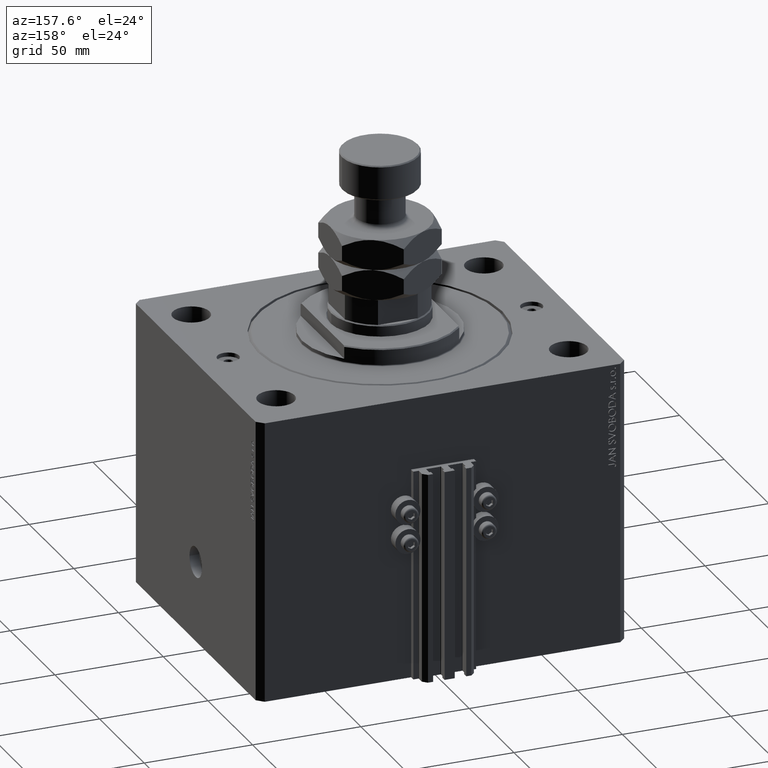
[diagram: clean part render]
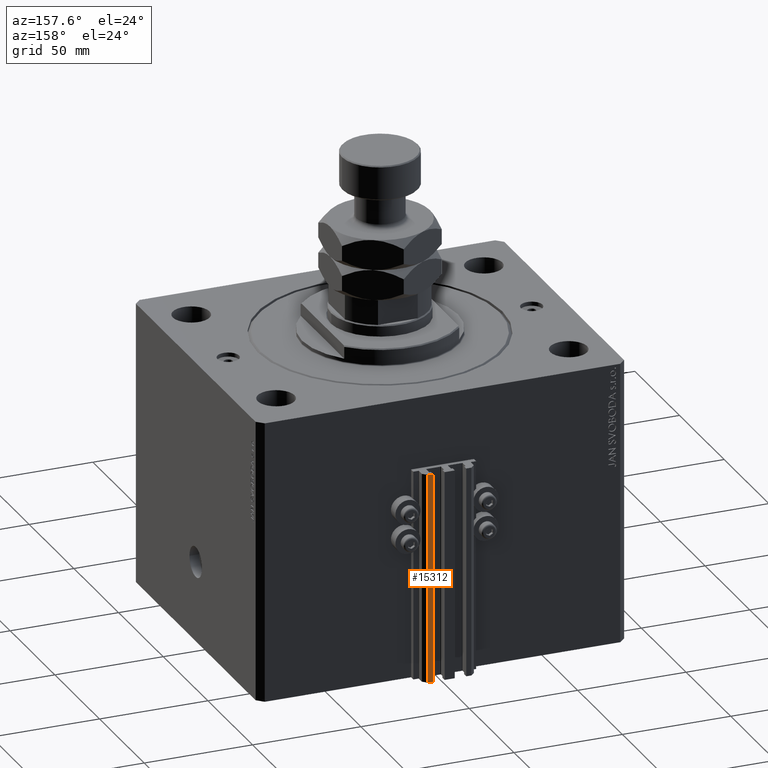
[diagram: same view with one face highlighted and labeled with its STEP entity id]
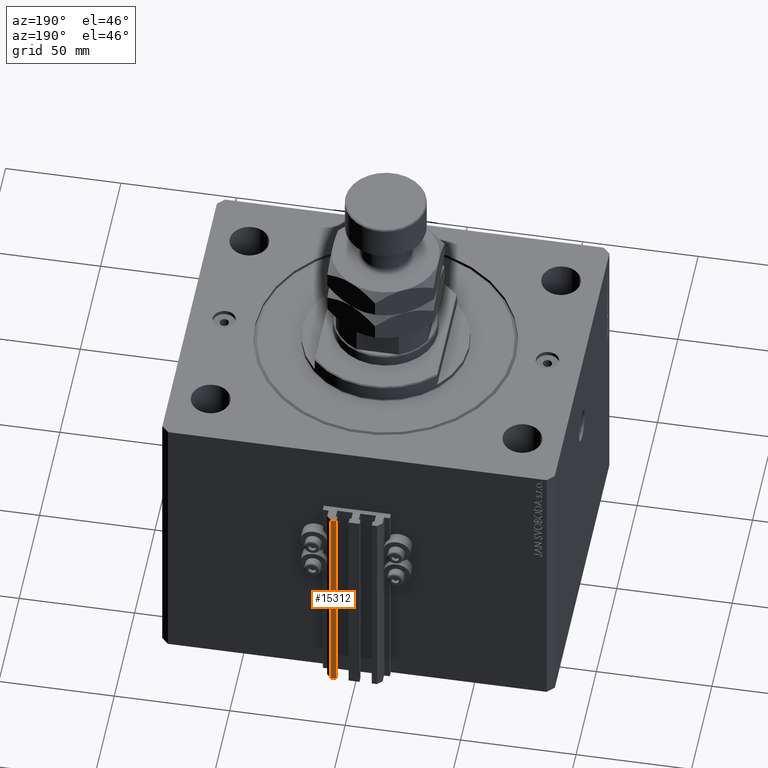
[diagram: same view with one face highlighted and labeled with its STEP entity id]
A machine part, auxiliary view. The second image highlights one B-rep face of the part: STEP entity #15312.
A second angle (auxiliary view) of the same face is appended — the face is thin or edge-on in the first view.
In plain terms, the highlighted planar face has unit normal (0, 1, 0).
Its self-contained STEP definition (entity closure, byte-faithful):
#107 = CARTESIAN_POINT ( 'NONE',  ( 9.999999999999998224, 78.00000000000002842, -33.00000000000000000 ) ) ;
#2447 = DIRECTION ( 'NONE',  ( 5.905441620346577829E-15, 1.000000000000000000, -0.000000000000000000 ) ) ;
#2597 = EDGE_CURVE ( 'NONE', #19729, #27269, #39484, .T. ) ;
#3317 = EDGE_LOOP ( 'NONE', ( #7254, #19008, #18897, #25527 ) ) ;
#4100 = LINE ( 'NONE', #38002, #24480 ) ;
#6514 = VERTEX_POINT ( 'NONE', #42823 ) ;
#7254 = ORIENTED_EDGE ( 'NONE', *, *, #44207, .F. ) ;
#7557 = DIRECTION ( 'NONE',  ( 0.000000000000000000, 0.000000000000000000, 1.000000000000000000 ) ) ;
#9773 = DIRECTION ( 'NONE',  ( 0.000000000000000000, 0.000000000000000000, 1.000000000000000000 ) ) ;
#13363 = FACE_OUTER_BOUND ( 'NONE', #3317, .T. ) ;
#15312 = ADVANCED_FACE ( 'NONE', ( #13363 ), #36352, .T. ) ;
#17572 = DIRECTION ( 'NONE',  ( -1.000000000000000000, 5.905441620346577829E-15, 0.000000000000000000 ) ) ;
#18502 = AXIS2_PLACEMENT_3D ( 'NONE', #33147, #2447, #17572 ) ;
#18712 = DIRECTION ( 'NONE',  ( -1.000000000000000000, 5.905441620346579407E-15, 0.000000000000000000 ) ) ;
#18897 = ORIENTED_EDGE ( 'NONE', *, *, #38246, .T. ) ;
#18996 = LINE ( 'NONE', #26687, #38621 ) ;
#19008 = ORIENTED_EDGE ( 'NONE', *, *, #2597, .F. ) ;
#19729 = VERTEX_POINT ( 'NONE', #48681 ) ;
#21484 = CARTESIAN_POINT ( 'NONE',  ( 9.999999999999998224, 78.00000000000002842, -33.00000000000000000 ) ) ;
#24480 = VECTOR ( 'NONE', #7557, 1000.000000000000000 ) ;
#25527 = ORIENTED_EDGE ( 'NONE', *, *, #39710, .T. ) ;
#26197 = DIRECTION ( 'NONE',  ( -1.000000000000000000, 5.905441620346579407E-15, 0.000000000000000000 ) ) ;
#26687 = CARTESIAN_POINT ( 'NONE',  ( 9.999999999999998224, 78.00000000000002842, -130.0000000000000000 ) ) ;
#27126 = LINE ( 'NONE', #107, #47503 ) ;
#27269 = VERTEX_POINT ( 'NONE', #21484 ) ;
#32840 = VERTEX_POINT ( 'NONE', #46673 ) ;
#33147 = CARTESIAN_POINT ( 'NONE',  ( 9.999999999999998224, 78.00000000000002842, -130.0000000000000000 ) ) ;
#36352 = PLANE ( 'NONE',  #18502 ) ;
#38002 = CARTESIAN_POINT ( 'NONE',  ( 7.649999999999998579, 78.00000000000004263, -130.0000000000000000 ) ) ;
#38246 = EDGE_CURVE ( 'NONE', #19729, #32840, #18996, .T. ) ;
#38621 = VECTOR ( 'NONE', #26197, 1000.000000000000000 ) ;
#39239 = CARTESIAN_POINT ( 'NONE',  ( 9.999999999999998224, 78.00000000000002842, -130.0000000000000000 ) ) ;
#39484 = LINE ( 'NONE', #39239, #41404 ) ;
#39710 = EDGE_CURVE ( 'NONE', #32840, #6514, #4100, .T. ) ;
#41404 = VECTOR ( 'NONE', #9773, 1000.000000000000000 ) ;
#42823 = CARTESIAN_POINT ( 'NONE',  ( 7.649999999999998579, 78.00000000000004263, -33.00000000000000000 ) ) ;
#44207 = EDGE_CURVE ( 'NONE', #27269, #6514, #27126, .T. ) ;
#46673 = CARTESIAN_POINT ( 'NONE',  ( 7.649999999999998579, 78.00000000000004263, -130.0000000000000000 ) ) ;
#47503 = VECTOR ( 'NONE', #18712, 1000.000000000000000 ) ;
#48681 = CARTESIAN_POINT ( 'NONE',  ( 9.999999999999998224, 78.00000000000002842, -130.0000000000000000 ) ) ;